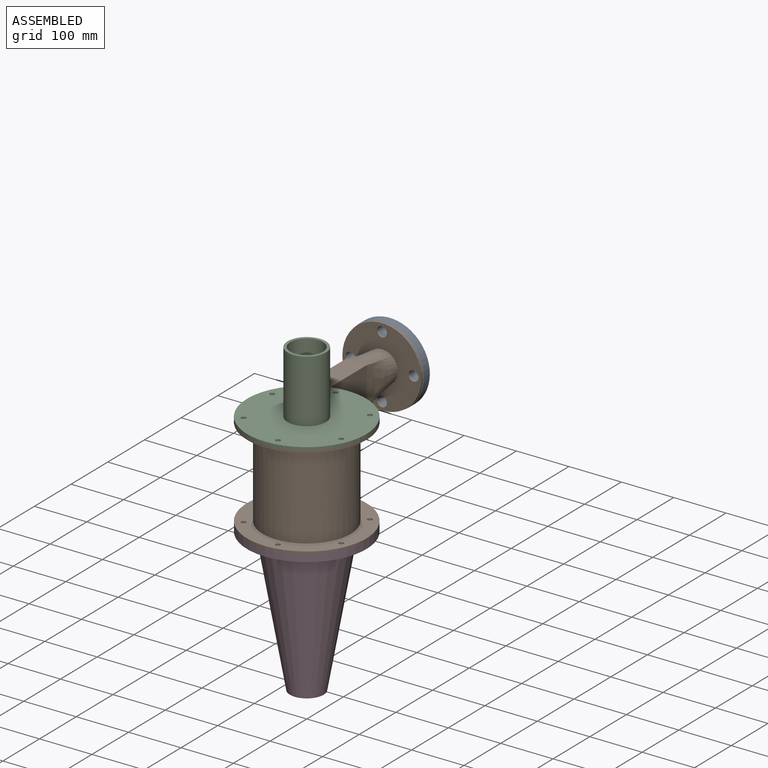
[diagram: assembled view]
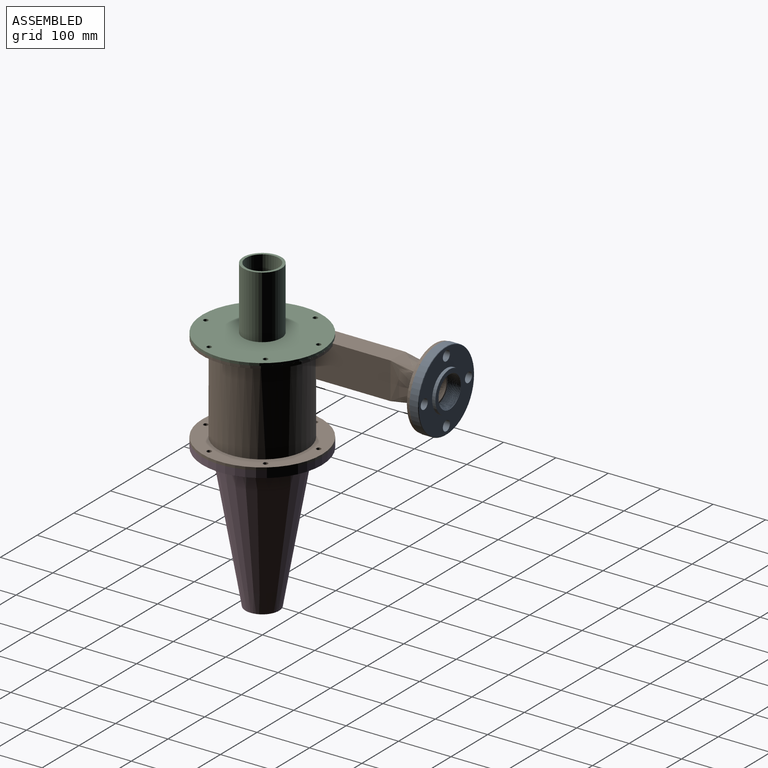
[diagram: assembled view, second angle]
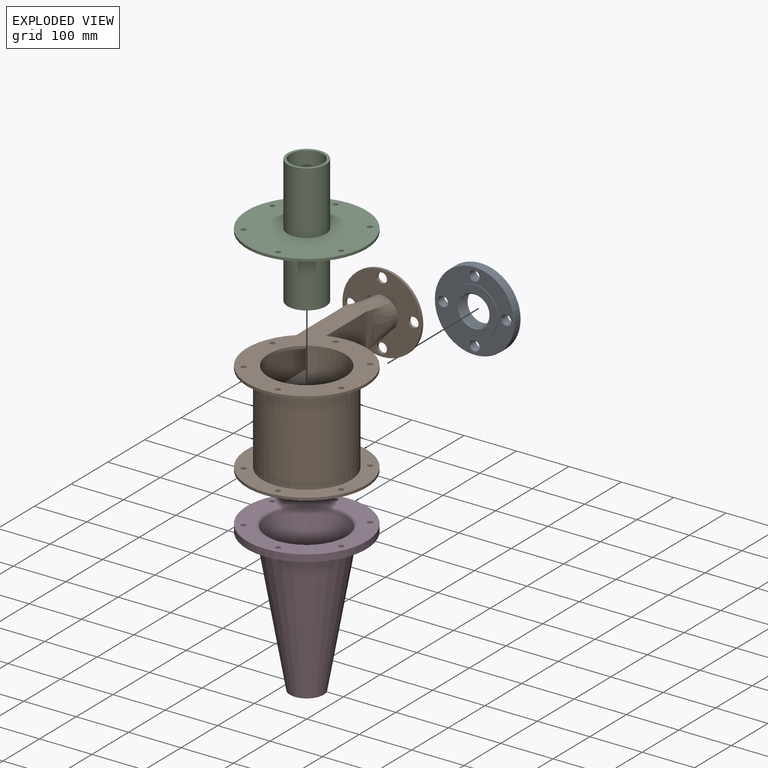
[diagram: exploded view]
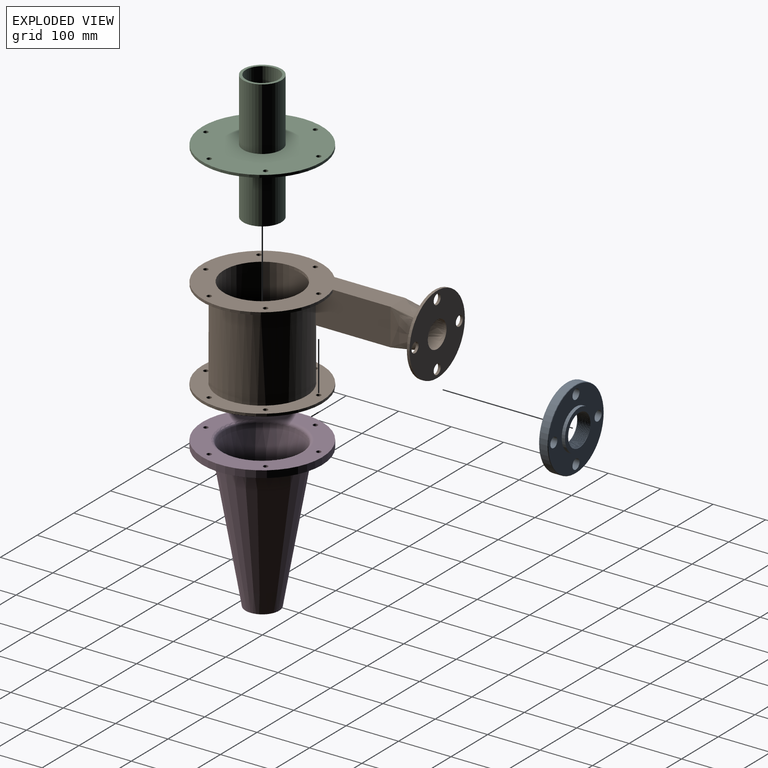
[diagram: exploded view, second angle]
ASSEMBLY  parts=4 mates=3
PART A: 49 faces, bbox 152.4x152.4x26.5 mm
  f0: cone r=0mm half-angle=45deg, axis (0,0,1), area 513.4mm2, adj f1,f2
  f1: cylinder r=76.2mm len=152.4mm, axis (0,0,1), area 7661.4mm2, adj f0,f4
  f2: plane 150.88x150.88mm, normal (0,0,-1), area 11993.8mm2, adj f0,f3,f5,f6,f7,f8
  f3: cylinder r=38.86mm len=77.72mm, axis (0,0,1), area 1550.5mm2, adj f2,f9
  f4: cone r=0mm half-angle=45deg, axis (0,0,-1), area 513.4mm2, adj f1,f10
  f5: cylinder r=9.53mm len=19.05mm, axis (0,0,-1), area 1048.9mm2, adj f2,f10
  f6: cylinder r=9.53mm len=19.05mm, axis (0,0,-1), area 1048.9mm2, adj f2,f10
  f7: cylinder r=9.53mm len=19.05mm, axis (0,0,-1), area 1048.9mm2, adj f2,f10
  f8: cylinder r=9.53mm len=19.05mm, axis (0,0,-1), area 1048.9mm2, adj f2,f10
  f9: plane 77.72x77.72mm, normal (0,0,-1), area 1841mm2, adj f3,f11,f13
  f10: plane 150.88x150.88mm, normal (0,0,1), area 10098.3mm2, adj f4,f5,f6,f7,f8,f36
  f11: cone r=0mm half-angle=45deg, axis (0,0,-1), area 104.8mm2, adj f9,f13,f38
  f12: cone r=0mm half-angle=45deg, axis (0,0,-1), area 1.5mm2, adj f13,f37,f45
  f13: cone r=0mm half-angle=45deg, axis (0,0,-1), area 160.4mm2, adj f9,f11,f12,f14,f37,f38,f40,f45
  f14: cone r=0mm half-angle=1.8deg, axis (0,0,-1), area 8.8mm2, adj f13,f15,f40,f45
  f15: cone r=0mm half-angle=1.8deg, axis (0,0,-1), area 23.3mm2, adj f14,f16,f41,f45
  f16: cone r=0mm half-angle=1.8deg, axis (0,0,-1), area 22.7mm2, adj f15,f17,f41,f45
  f17: cone r=0mm half-angle=1.8deg, axis (0,0,-1), area 22.7mm2, adj f16,f18,f41,f45
  f18: cone r=0mm half-angle=1.8deg, axis (0,0,-1), area 22.7mm2, adj f17,f19,f41,f45
  f19: cone r=0mm half-angle=1.8deg, axis (0,0,-1), area 23.9mm2, adj f18,f20,f42,f45
  f20: cone r=0mm half-angle=1.8deg, axis (0,0,-1), area 22.6mm2, adj f19,f21,f42,f45
  f21: cone r=0mm half-angle=1.8deg, axis (0,0,-1), area 22.6mm2, adj f20,f22,f42,f45
  f22: cone r=0mm half-angle=1.8deg, axis (0,0,-1), area 22.8mm2, adj f21,f23,f42,f45
  f23: cone r=0mm half-angle=1.8deg, axis (0,0,-1), area 22.5mm2, adj f22,f24,f43,f45
  f24: cone r=0mm half-angle=1.8deg, axis (0,0,-1), area 22.5mm2, adj f23,f25,f43,f45
  f25: cone r=0mm half-angle=1.8deg, axis (0,0,-1), area 22.5mm2, adj f24,f26,f43,f45
  f26: cone r=0mm half-angle=1.8deg, axis (0,0,-1), area 22.4mm2, adj f25,f27,f43,f45
  f27: cone r=0mm half-angle=1.8deg, axis (0,0,-1), area 22.4mm2, adj f26,f28,f43,f45
  f28: cone r=0mm half-angle=1.8deg, axis (0,0,-1), area 22.4mm2, adj f27,f29,f43,f45
  f29: cone r=0mm half-angle=1.8deg, axis (0,0,-1), area 22.4mm2, adj f28,f30,f43,f45
  f30: cone r=0mm half-angle=1.8deg, axis (0,0,-1), area 22.3mm2, adj f29,f31,f43,f45
  f31: cone r=0mm half-angle=1.8deg, axis (0,0,-1), area 22.3mm2, adj f30,f32,f43,f45
  f32: cone r=0mm half-angle=1.8deg, axis (0,0,-1), area 23.5mm2, adj f31,f33,f39,f45
  f33: cone r=0mm half-angle=1.8deg, axis (0,0,-1), area 22.3mm2, adj f32,f34,f39,f45
  f34: cone r=0mm half-angle=1.8deg, axis (0,0,-1), area 22.3mm2, adj f33,f35,f39,f45
  f35: cone r=0mm half-angle=1.8deg, axis (0,0,-1), area 22.2mm2, adj f34,f39,f44,f45
  f36: cylinder r=45.97mm len=91.95mm, axis (0,0,1), area 440.2mm2, adj f10,f46
  f37: bspline ~55.85x54.76mm, area 471.9mm2, adj f12,f13,f38,f39,f40,f41,f42,f43
  f38: bspline ~60.15x60.11mm, area 72.2mm2, adj f11,f13,f37
  f39: bspline ~59.18x59.18mm, area 219.3mm2, adj f32,f33,f34,f35,f37,f44,f47
  f40: bspline ~60.15x60.12mm, area 63.9mm2, adj f13,f14,f37
  f41: bspline ~56.92x56.88mm, area 176.3mm2, adj f15,f16,f17,f18,f37
  f42: bspline ~60.08x60.08mm, area 410.2mm2, adj f19,f20,f21,f22,f37
  f43: bspline ~56.33x55.23mm, area -42.1mm2, adj f23,f24,f25,f26,f27,f28,f29,f30
  f44: cone r=0mm half-angle=1.8deg, axis (0,0,-1), area 10.8mm2, adj f35,f39,f45,f47
  f45: bspline ~59.59x59.05mm, area 17.8mm2, adj f12,f13,f14,f15,f16,f17,f18,f19
  f46: plane 91.95x91.95mm, normal (0,0,1), area 3736.5mm2, adj f36,f47,f48
  f47: cone r=0mm half-angle=45deg, axis (0,0,1), area 240mm2, adj f37,f39,f44,f45,f46,f48
  f48: cone r=0mm half-angle=45deg, axis (0,0,1), area 210.7mm2, adj f45,f46,f47
PART B: 53 faces, bbox 247.6x233.8x407 mm
  f0: plane 158.92x60mm, normal (-1,0,0), area 9535mm2, adj f1,f2,f24,f34
  f1: plane 218x30mm, normal (0,-1,0), area 5299.5mm2, adj f0,f2,f25,f33
  f2: cylinder r=73.18mm len=193.36mm, axis (0,1,0), area 84781.6mm2, adj f0,f1,f5,f7,f24,f25
  f3: cylinder r=84.15mm len=170mm, axis (0,1,0), area 85940.8mm2, adj f9,f11,f26,f27,f28
  f4: plane 228x228mm, normal (0,-1,0), area 20264.8mm2, adj f6,f10,f12,f13,f14,f15,f16,f17
  f5: plane 332x228mm, normal (0,1,0), area 28458.2mm2, adj f2,f8,f18,f19,f20,f21,f22,f23
  f6: torus R=80.15mm, axis (0,-1,0), area 4171.3mm2, adj f4,f7
  f7: cone r=74.2mm half-angle=7.1deg, axis (0,1,0), area 3782.6mm2, adj f2,f6
  f8: cylinder r=114mm len=228mm, axis (0,1,0), area 3345.3mm2, adj f5,f9,f27,f28
  f9: plane 228x228mm, normal (0,-1,0), area 16654mm2, adj f3,f8,f18,f19,f20,f21,f22,f23
  f10: cylinder r=114mm len=228mm, axis (0,-1,0), area 3581.4mm2, adj f4,f11
  f11: plane 228x228mm, normal (0,1,0), area 18200.1mm2, adj f3,f10,f12,f13,f14,f15,f16,f17
  f12: cylinder r=4.5mm len=9mm, axis (0,1,0), area 141.4mm2, adj f4,f11
  f13: cylinder r=4.5mm len=9mm, axis (0,1,0), area 141.4mm2, adj f4,f11
  f14: cylinder r=4.5mm len=9mm, axis (0,1,0), area 141.4mm2, adj f4,f11
  f15: cylinder r=4.5mm len=9mm, axis (0,1,0), area 141.4mm2, adj f4,f11
  f16: cylinder r=4.5mm len=9mm, axis (0,1,0), area 141.4mm2, adj f4,f11
  f17: cylinder r=4.5mm len=9mm, axis (0,1,0), area 141.4mm2, adj f4,f11
  f18: cylinder r=4.5mm len=9mm, axis (0,1,0), area 141.4mm2, adj f5,f9
  f19: cylinder r=4.5mm len=9mm, axis (0,1,0), area 141.4mm2, adj f5,f9
  f20: cylinder r=4.5mm len=9mm, axis (0,1,0), area 141.4mm2, adj f5,f9
  f21: cylinder r=4.5mm len=9mm, axis (0,1,0), area 141.4mm2, adj f5,f9
  f22: cylinder r=4.5mm len=9mm, axis (0,1,0), area 141.4mm2, adj f5,f9
  f23: cylinder r=4.5mm len=9mm, axis (0,1,0), area 141.4mm2, adj f5,f9
  f24: plane 218x30mm, normal (0,1,0), area 5299.5mm2, adj f0,f2,f25,f35
  f25: plane 218x60mm, normal (1,0,0), area 13080mm2, adj f1,f2,f24,f36
  f26: plane 186.87x40mm, normal (0,-1,0), area 6382.2mm2, adj f3,f27,f28,f29
  f27: plane 186.87x70mm, normal (-1,0,0), area 12821.7mm2, adj f3,f5,f8,f9,f26,f32
  f28: plane 143.01x70mm, normal (1,0,0), area 9848.6mm2, adj f3,f5,f8,f9,f26,f30
  f29: bspline ~70x45.97mm, area 3186.4mm2, adj f26,f30,f32,f37
  f30: bspline ~70x70mm, area 4226mm2, adj f28,f29,f31,f37
  f31: bspline ~70x45.97mm, area 3186.4mm2, adj f5,f30,f32,f37
  f32: bspline ~70x70mm, area 3611.4mm2, adj f27,f29,f31,f37
  f33: bspline ~70x38.18mm, area 2542.2mm2, adj f1,f34,f36,f49
  f34: bspline ~70x60mm, area 3584.4mm2, adj f0,f33,f35,f52
  f35: bspline ~70x38.18mm, area 2542.2mm2, adj f24,f34,f36,f51
  f36: bspline ~70x60mm, area 3071.9mm2, adj f25,f33,f35,f50
  f37: plane 173.51x150.88mm, normal (0,0,1), area 13836mm2, adj f29,f30,f31,f32,f38,f39,f40,f41
  f38: cylinder r=9.53mm len=19.05mm, axis (0,0,1), area 149.6mm2, adj f37,f43,f48
  f39: extruded ~19.05x9.53mm, area 149.6mm2, adj f37,f44,f48
  f40: extruded ~19.05x9.53mm, area 149.6mm2, adj f37,f45,f48
  f41: extruded ~19.05x9.53mm, area 149.6mm2, adj f37,f46,f48
  f42: cylinder r=75.44mm len=150.88mm, axis (0,0,1), area 1185mm2, adj f37,f47,f48
  f43: extruded ~19.05x9.53mm, area 149.6mm2, adj f37,f38,f48
  f44: cylinder r=9.53mm len=19.05mm, axis (0,0,1), area 149.6mm2, adj f37,f39,f48
  f45: cylinder r=9.53mm len=19.05mm, axis (0,0,1), area 149.6mm2, adj f37,f40,f48
  f46: cylinder r=9.53mm len=19.05mm, axis (0,0,1), area 149.6mm2, adj f37,f41,f48
  f47: extruded ~150.88x75.44mm, area 1185mm2, adj f37,f42,f48
  f48: plane 173.52x150.89mm, normal (0,0,-1), area 14712.7mm2, adj f38,f39,f40,f41,f42,f43,f44,f45
  f49: extruded ~38.18x12.2mm, area 219.7mm2, adj f33,f48,f50,f52
  f50: extruded ~26.41x5mm, area 138.9mm2, adj f36,f48,f49,f51
  f51: extruded ~38.18x12.2mm, area 219.7mm2, adj f35,f48,f50,f52
  f52: extruded ~38.66x8.92mm, area 219.7mm2, adj f34,f48,f49,f51
PART C: 14 faces, bbox 228x228x245 mm
  f0: cylinder r=4.5mm len=9mm, axis (0,0,-1), area 141.4mm2, adj f7,f8
  f1: cylinder r=4.5mm len=9mm, axis (0,0,-1), area 141.4mm2, adj f7,f8
  f2: cylinder r=4.5mm len=9mm, axis (0,0,-1), area 141.4mm2, adj f7,f8
  f3: cylinder r=4.5mm len=9mm, axis (0,0,-1), area 141.4mm2, adj f7,f8
  f4: cylinder r=4.5mm len=9mm, axis (0,0,-1), area 141.4mm2, adj f7,f8
  f5: cylinder r=4.5mm len=9mm, axis (0,0,-1), area 141.4mm2, adj f7,f8
  f6: cylinder r=114mm len=228mm, axis (0,0,-1), area 3581.4mm2, adj f7,f8
  f7: plane 228x228mm, normal (0,0,1), area 36261mm2, adj f0,f1,f2,f3,f4,f5,f6,f11
  f8: plane 228x228mm, normal (0,0,-1), area 36261mm2, adj f0,f1,f2,f3,f4,f5,f6,f9
  f9: cylinder r=36.5mm len=120mm, axis (0,0,-1), area 27520.4mm2, adj f8,f13
  f10: cylinder r=31.34mm len=245mm, axis (0,0,-1), area 48244.2mm2, adj f12,f13
  f11: cylinder r=36.5mm len=120mm, axis (0,0,-1), area 27520.4mm2, adj f7,f12
  f12: plane 73x73mm, normal (0,0,1), area 1099.7mm2, adj f10,f11
  f13: plane 73x73mm, normal (0,0,-1), area 1099.7mm2, adj f9,f10
PART D: 14 faces, bbox 228x228x286.6 mm
  f0: plane 64.16x64.16mm, normal (0,0,-1), area 1269.1mm2, adj f1,f2
  f1: cone r=80.15mm half-angle=10deg, axis (0,0,1), area 97817.5mm2, adj f0,f12
  f2: cone r=25mm half-angle=10deg, axis (0,0,1), area 85579.4mm2, adj f0,f3
  f3: cone r=74.2mm half-angle=7.1deg, axis (0,0,1), area 3782.6mm2, adj f2,f4
  f4: torus R=80.15mm, axis (0,0,1), area 4171.3mm2, adj f3,f13
  f5: cylinder r=4.5mm len=13.36mm, axis (0,0,1), area 377.7mm2, adj f12,f13
  f6: cylinder r=4.5mm len=13.36mm, axis (0,0,1), area 377.7mm2, adj f12,f13
  f7: cylinder r=4.5mm len=13.36mm, axis (0,0,1), area 377.7mm2, adj f12,f13
  f8: cylinder r=4.5mm len=13.36mm, axis (0,0,1), area 377.7mm2, adj f12,f13
  f9: cylinder r=4.5mm len=13.36mm, axis (0,0,1), area 377.7mm2, adj f12,f13
  f10: cylinder r=4.5mm len=13.36mm, axis (0,0,1), area 377.7mm2, adj f12,f13
  f11: cylinder r=114mm len=228mm, axis (0,0,1), area 9569.3mm2, adj f12,f13
  f12: plane 228x228mm, normal (0,0,-1), area 20264.8mm2, adj f1,f5,f6,f7,f8,f9,f10,f11
  f13: plane 228x228mm, normal (0,0,1), area 20264.8mm2, adj f4,f5,f6,f7,f8,f9,f10,f11
PLACE A rot(axis=(1,0,0),90deg) t=(-58.18,291.48,158.36)mm
PLACE B rot(axis=(1,0,0),90deg) t=(0,0,193.36)mm
PLACE C at identity
PLACE D at identity
MATE fastened C.f10 <-> B.f2  axis (0,0,-1) through (0,0,193.36)mm
MATE fastened A.f0 <-> B.f42  axis (0,-1,0) through (-58.18,293,158.36)mm
MATE fastened D.f11 <-> B.f10  axis (0,0,1) through (0,0,13.36)mm
